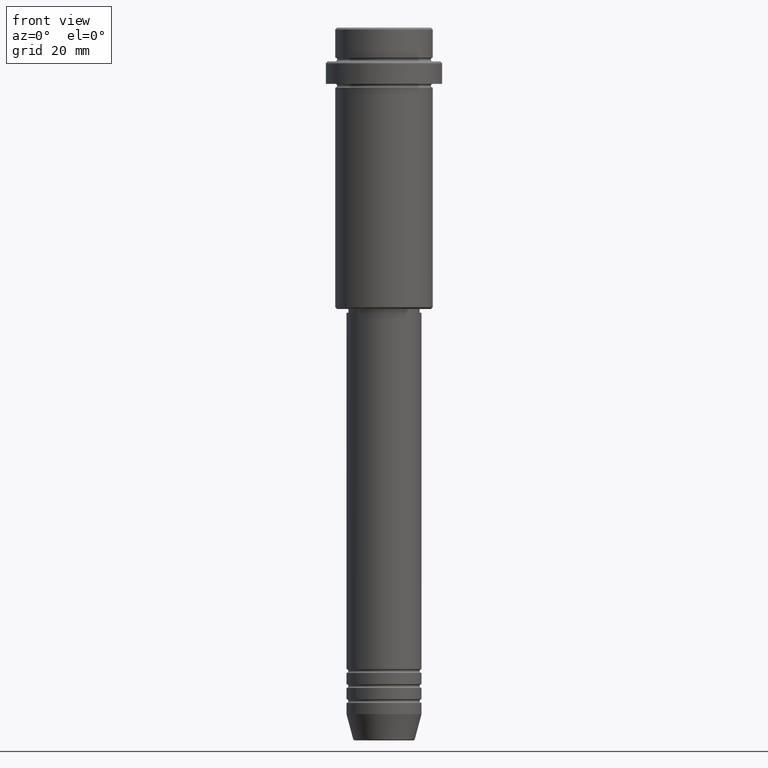
[diagram: clean part render]
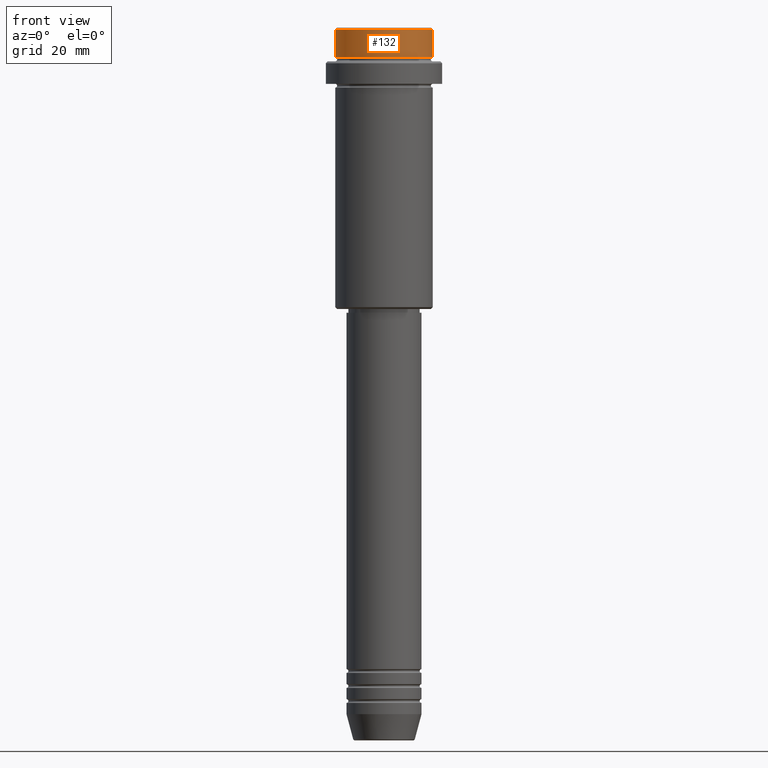
[diagram: same view with one face highlighted and labeled with its STEP entity id]
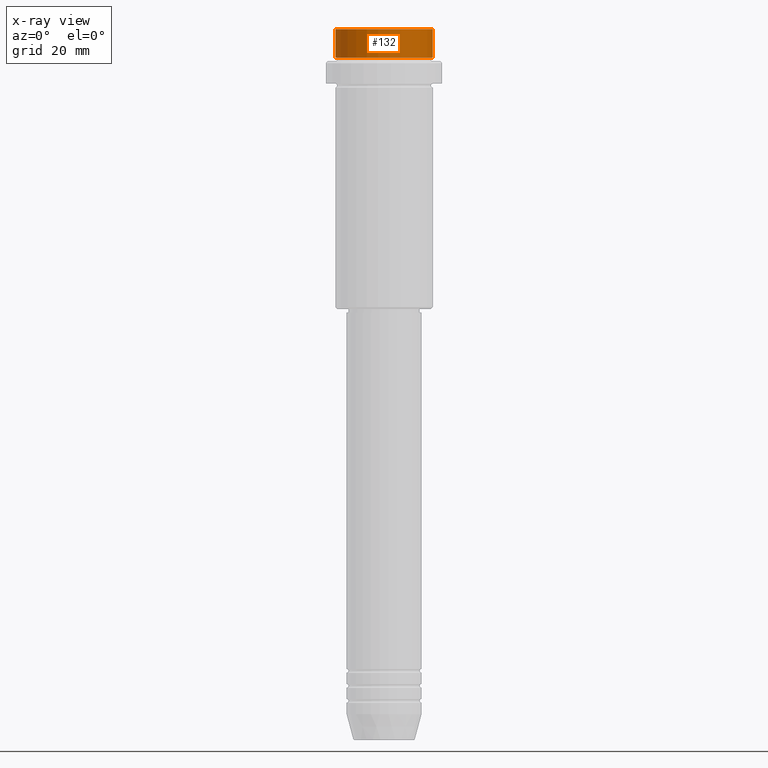
[diagram: x-ray of the same camera — body ghosted, the highlighted face saturated]
A machine part, front view. The second image highlights one B-rep face of the part: STEP entity #132.
The next image is the same camera in x-ray: the body ghosted, the highlighted face saturated — about 0% of this face is hidden behind the body in this view.
In plain terms, the highlighted cylindrical surface (partial cylindrical patch) has radius 13 mm, axis along (-0, -0, 1).
Its self-contained STEP definition (entity closure, byte-faithful):
#26 = FACE_OUTER_BOUND ( 'NONE', #660, .T. ) ;
#40 = CARTESIAN_POINT ( 'NONE',  ( -12.99999999999999822, 1.592040838891558898E-15, -0.4999999999999761302 ) ) ;
#93 = ORIENTED_EDGE ( 'NONE', *, *, #758, .T. ) ;
#132 = ADVANCED_FACE ( 'NONE', ( #26 ), #230, .T. ) ;
#149 = VECTOR ( 'NONE', #564, 1000.000000000000000 ) ;
#230 = CYLINDRICAL_SURFACE ( 'NONE', #1057, 12.99999999999999822 ) ;
#233 = CARTESIAN_POINT ( 'NONE',  ( 0.000000000000000000, 0.000000000000000000, -7.999999999999998224 ) ) ;
#254 = DIRECTION ( 'NONE',  ( -0.000000000000000000, -0.000000000000000000, 1.000000000000000000 ) ) ;
#271 = ORIENTED_EDGE ( 'NONE', *, *, #1179, .T. ) ;
#304 = LINE ( 'NONE', #632, #1384 ) ;
#378 = VERTEX_POINT ( 'NONE', #881 ) ;
#474 = CARTESIAN_POINT ( 'NONE',  ( 0.000000000000000000, 0.000000000000000000, 0.000000000000000000 ) ) ;
#564 = DIRECTION ( 'NONE',  ( -0.000000000000000000, -0.000000000000000000, 1.000000000000000000 ) ) ;
#576 = DIRECTION ( 'NONE',  ( 1.000000000000000000, 0.000000000000000000, 0.000000000000000000 ) ) ;
#632 = CARTESIAN_POINT ( 'NONE',  ( -12.99999999999999822, 1.592040838891558898E-15, 0.000000000000000000 ) ) ;
#639 = CIRCLE ( 'NONE', #964, 12.99999999999999822 ) ;
#660 = EDGE_LOOP ( 'NONE', ( #730, #271, #843, #93 ) ) ;
#680 = VERTEX_POINT ( 'NONE', #956 ) ;
#730 = ORIENTED_EDGE ( 'NONE', *, *, #1068, .F. ) ;
#758 = EDGE_CURVE ( 'NONE', #680, #875, #639, .T. ) ;
#768 = DIRECTION ( 'NONE',  ( 0.000000000000000000, 0.000000000000000000, -1.000000000000000000 ) ) ;
#782 = LINE ( 'NONE', #1219, #149 ) ;
#821 = AXIS2_PLACEMENT_3D ( 'NONE', #233, #893, #1315 ) ;
#843 = ORIENTED_EDGE ( 'NONE', *, *, #1260, .T. ) ;
#858 = CARTESIAN_POINT ( 'NONE',  ( 12.99999999999999822, 0.000000000000000000, -7.999999999999998224 ) ) ;
#875 = VERTEX_POINT ( 'NONE', #40 ) ;
#881 = CARTESIAN_POINT ( 'NONE',  ( -12.99999999999999822, 1.592040838891558898E-15, -7.999999999999998224 ) ) ;
#893 = DIRECTION ( 'NONE',  ( -0.000000000000000000, -0.000000000000000000, 1.000000000000000000 ) ) ;
#914 = CIRCLE ( 'NONE', #821, 12.99999999999999822 ) ;
#956 = CARTESIAN_POINT ( 'NONE',  ( 12.99999999999999822, 0.000000000000000000, -0.4999999999999761302 ) ) ;
#964 = AXIS2_PLACEMENT_3D ( 'NONE', #1103, #768, #576 ) ;
#1057 = AXIS2_PLACEMENT_3D ( 'NONE', #474, #254, #1229 ) ;
#1068 = EDGE_CURVE ( 'NONE', #378, #875, #304, .T. ) ;
#1091 = VERTEX_POINT ( 'NONE', #858 ) ;
#1103 = CARTESIAN_POINT ( 'NONE',  ( 0.000000000000000000, 0.000000000000000000, -0.4999999999999761302 ) ) ;
#1179 = EDGE_CURVE ( 'NONE', #378, #1091, #914, .T. ) ;
#1219 = CARTESIAN_POINT ( 'NONE',  ( 12.99999999999999822, 0.000000000000000000, 0.000000000000000000 ) ) ;
#1229 = DIRECTION ( 'NONE',  ( 1.000000000000000000, 0.000000000000000000, 0.000000000000000000 ) ) ;
#1260 = EDGE_CURVE ( 'NONE', #1091, #680, #782, .T. ) ;
#1315 = DIRECTION ( 'NONE',  ( 1.000000000000000000, 0.000000000000000000, 0.000000000000000000 ) ) ;
#1384 = VECTOR ( 'NONE', #1392, 1000.000000000000000 ) ;
#1392 = DIRECTION ( 'NONE',  ( -0.000000000000000000, -0.000000000000000000, 1.000000000000000000 ) ) ;